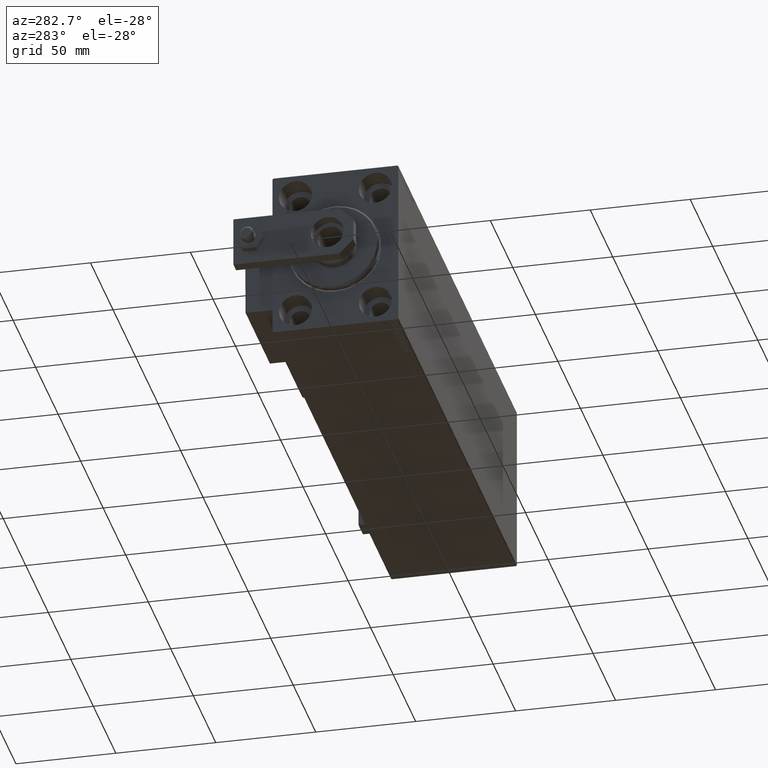
[diagram: clean part render]
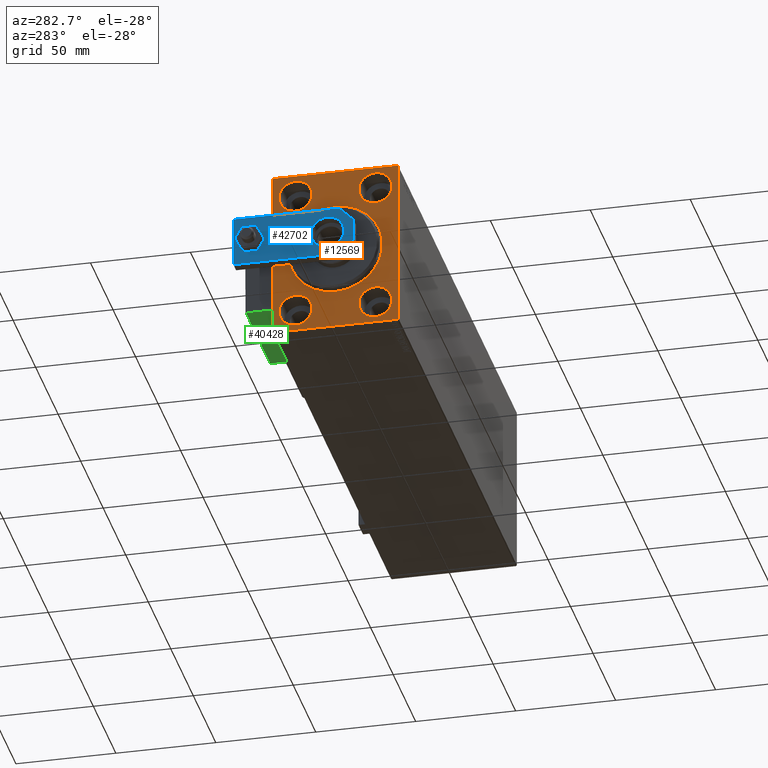
[diagram: same view with three faces highlighted in distinct colors, each labeled with its STEP entity id]
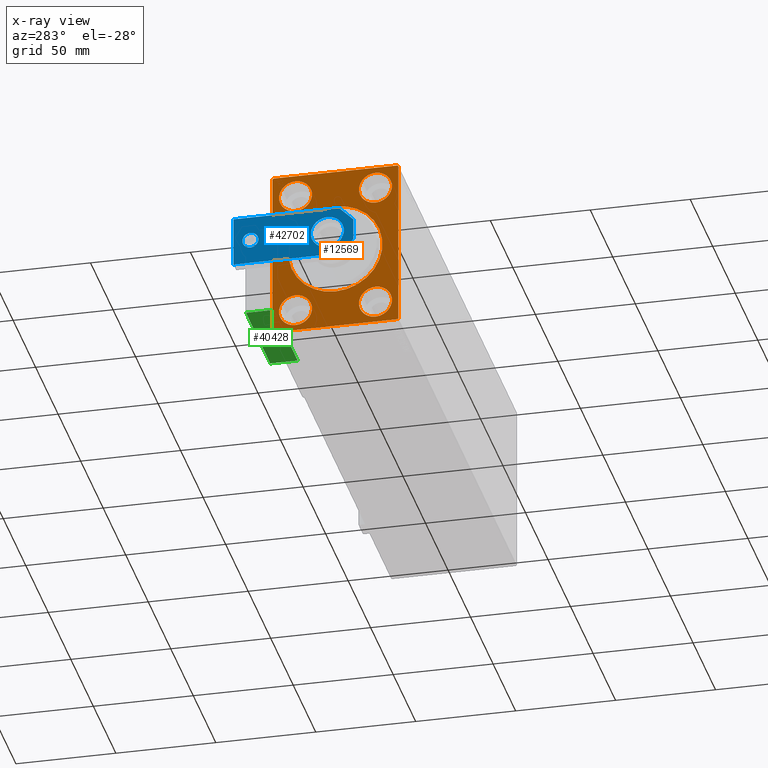
[diagram: x-ray of the same camera — body ghosted, the three highlighted faces saturated]
A machine part, auxiliary view with three faces highlighted in distinct colors.
The next image is the same camera in x-ray (body ghosted, the three faces saturated) — at least one of them is partly hidden behind the body in this view.
Their STEP definitions:

[orange] entity #12569 — the highlighted planar face has unit normal (1, 0, 0).
#187 = AXIS2_PLACEMENT_3D ( 'NONE', #39485, #4790, #4297 ) ;
#916 = DIRECTION ( 'NONE',  ( 0.000000000000000000, 0.000000000000000000, 1.000000000000000000 ) ) ;
#1050 = EDGE_CURVE ( 'NONE', #39361, #35404, #19446, .T. ) ;
#1446 = EDGE_LOOP ( 'NONE', ( #12610, #12957 ) ) ;
#1687 = CARTESIAN_POINT ( 'NONE',  ( 0.000000000000000000, 0.000000000000000000, 0.000000000000000000 ) ) ;
#2005 = ORIENTED_EDGE ( 'NONE', *, *, #1050, .F. ) ;
#2496 = CARTESIAN_POINT ( 'NONE',  ( 0.000000000000000000, -20.00000000000000355, -31.49999999999999289 ) ) ;
#2658 = CIRCLE ( 'NONE', #32554, 8.250000000000000000 ) ;
#2949 = DIRECTION ( 'NONE',  ( 0.000000000000000000, 0.000000000000000000, -1.000000000000000000 ) ) ;
#3012 = FACE_BOUND ( 'NONE', #20142, .T. ) ;
#3029 = ORIENTED_EDGE ( 'NONE', *, *, #18853, .F. ) ;
#3517 = AXIS2_PLACEMENT_3D ( 'NONE', #15751, #31180, #8153 ) ;
#3810 = VECTOR ( 'NONE', #9767, 1000.000000000000114 ) ;
#4168 = AXIS2_PLACEMENT_3D ( 'NONE', #45117, #21805, #45866 ) ;
#4251 = ORIENTED_EDGE ( 'NONE', *, *, #36835, .T. ) ;
#4278 = CIRCLE ( 'NONE', #43102, 8.249999999999992895 ) ;
#4297 = DIRECTION ( 'NONE',  ( 0.000000000000000000, 0.000000000000000000, 1.000000000000000000 ) ) ;
#4420 = VERTEX_POINT ( 'NONE', #9953 ) ;
#4425 = VERTEX_POINT ( 'NONE', #17782 ) ;
#4790 = DIRECTION ( 'NONE',  ( -1.000000000000000000, 0.000000000000000000, 0.000000000000000000 ) ) ;
#5200 = EDGE_CURVE ( 'NONE', #7770, #35404, #46510, .T. ) ;
#5217 = EDGE_CURVE ( 'NONE', #8731, #11006, #43702, .T. ) ;
#5986 = CARTESIAN_POINT ( 'NONE',  ( 0.000000000000000000, -31.50000000000000000, 41.99999999999996447 ) ) ;
#6490 = DIRECTION ( 'NONE',  ( 0.000000000000000000, -0.7071067811865474617, -0.7071067811865474617 ) ) ;
#6833 = CARTESIAN_POINT ( 'NONE',  ( 0.000000000000000000, 0.000000000000000000, 0.000000000000000000 ) ) ;
#7028 = DIRECTION ( 'NONE',  ( 0.000000000000000000, 0.000000000000000000, 1.000000000000000000 ) ) ;
#7770 = VERTEX_POINT ( 'NONE', #17943 ) ;
#7908 = DIRECTION ( 'NONE',  ( 1.000000000000000000, 0.000000000000000000, 0.000000000000000000 ) ) ;
#8153 = DIRECTION ( 'NONE',  ( 0.000000000000000000, 0.000000000000000000, 1.000000000000000000 ) ) ;
#8184 = EDGE_CURVE ( 'NONE', #39334, #13232, #13652, .T. ) ;
#8185 = VECTOR ( 'NONE', #6490, 1000.000000000000114 ) ;
#8731 = VERTEX_POINT ( 'NONE', #21180 ) ;
#9278 = DIRECTION ( 'NONE',  ( -1.000000000000000000, 0.000000000000000000, 0.000000000000000000 ) ) ;
#9427 = CARTESIAN_POINT ( 'NONE',  ( 0.000000000000000000, -31.50000000000000000, -42.50000000000000711 ) ) ;
#9767 = DIRECTION ( 'NONE',  ( -0.000000000000000000, 0.7071067811865474617, 0.7071067811865474617 ) ) ;
#9794 = DIRECTION ( 'NONE',  ( 1.000000000000000000, 0.000000000000000000, 0.000000000000000000 ) ) ;
#9953 = CARTESIAN_POINT ( 'NONE',  ( 0.000000000000000000, 19.99999999999999645, -39.74999999999999289 ) ) ;
#9999 = CARTESIAN_POINT ( 'NONE',  ( 0.000000000000000000, 31.50000000000001421, -41.99999999999997868 ) ) ;
#10451 = DIRECTION ( 'NONE',  ( -1.000000000000000000, 0.000000000000000000, 0.000000000000000000 ) ) ;
#11006 = VERTEX_POINT ( 'NONE', #48396 ) ;
#11289 = DIRECTION ( 'NONE',  ( -0.000000000000000000, -0.7071067811865474617, 0.7071067811865474617 ) ) ;
#11293 = CARTESIAN_POINT ( 'NONE',  ( 0.000000000000000000, 31.50000000000000000, 42.50000000000000711 ) ) ;
#11768 = EDGE_CURVE ( 'NONE', #7770, #11006, #30280, .T. ) ;
#11825 = DIRECTION ( 'NONE',  ( -0.000000000000000000, 0.7071067811865671127, -0.7071067811865279218 ) ) ;
#11862 = EDGE_LOOP ( 'NONE', ( #34883, #49711 ) ) ;
#12355 = DIRECTION ( 'NONE',  ( 0.000000000000000000, 0.000000000000000000, 1.000000000000000000 ) ) ;
#12569 = ADVANCED_FACE ( 'NONE', ( #44306, #3012, #21998, #49349, #37480, #29096 ), #45057, .F. ) ;
#12610 = ORIENTED_EDGE ( 'NONE', *, *, #42317, .F. ) ;
#12648 = CARTESIAN_POINT ( 'NONE',  ( 0.000000000000000000, -20.00000000000000355, -39.74999999999999289 ) ) ;
#12729 = DIRECTION ( 'NONE',  ( 0.000000000000000000, 1.000000000000000000, 0.000000000000000000 ) ) ;
#12945 = VERTEX_POINT ( 'NONE', #31473 ) ;
#12957 = ORIENTED_EDGE ( 'NONE', *, *, #18537, .F. ) ;
#13232 = VERTEX_POINT ( 'NONE', #16477 ) ;
#13404 = DIRECTION ( 'NONE',  ( -1.000000000000000000, 0.000000000000000000, 0.000000000000000000 ) ) ;
#13652 = CIRCLE ( 'NONE', #34693, 23.50000000000004619 ) ;
#13768 = VERTEX_POINT ( 'NONE', #17285 ) ;
#13933 = ORIENTED_EDGE ( 'NONE', *, *, #31247, .F. ) ;
#14624 = DIRECTION ( 'NONE',  ( -1.000000000000000000, 0.000000000000000000, 0.000000000000000000 ) ) ;
#15106 = CARTESIAN_POINT ( 'NONE',  ( 0.000000000000000000, -31.50000000000000000, 42.49999999999999289 ) ) ;
#15404 = CIRCLE ( 'NONE', #38876, 23.50000000000004619 ) ;
#15412 = AXIS2_PLACEMENT_3D ( 'NONE', #6833, #44557, #49100 ) ;
#15518 = CIRCLE ( 'NONE', #4168, 8.249999999999992895 ) ;
#15751 = CARTESIAN_POINT ( 'NONE',  ( 0.000000000000000000, 20.00000000000000355, 31.50000000000000000 ) ) ;
#15957 = VECTOR ( 'NONE', #27797, 1000.000000000000000 ) ;
#16477 = CARTESIAN_POINT ( 'NONE',  ( 0.000000000000000000, 0.000000000000000000, 23.50000000000004619 ) ) ;
#17249 = CARTESIAN_POINT ( 'NONE',  ( 0.000000000000000000, 19.99999999999999645, -23.24999999999999289 ) ) ;
#17285 = CARTESIAN_POINT ( 'NONE',  ( 0.000000000000000000, -30.99999999999997158, -42.50000000000000711 ) ) ;
#17505 = LINE ( 'NONE', #9427, #17788 ) ;
#17782 = CARTESIAN_POINT ( 'NONE',  ( 0.000000000000000000, -20.00000000000000355, -23.24999999999999289 ) ) ;
#17788 = VECTOR ( 'NONE', #12729, 1000.000000000000000 ) ;
#17937 = VECTOR ( 'NONE', #2949, 1000.000000000000000 ) ;
#17943 = CARTESIAN_POINT ( 'NONE',  ( 0.000000000000000000, 30.99999999999991473, 42.50000000000000711 ) ) ;
#18523 = CARTESIAN_POINT ( 'NONE',  ( 0.000000000000000000, -19.99999999999999645, 39.74999999999999289 ) ) ;
#18537 = EDGE_CURVE ( 'NONE', #12945, #19269, #15518, .T. ) ;
#18815 = ORIENTED_EDGE ( 'NONE', *, *, #5217, .T. ) ;
#18853 = EDGE_CURVE ( 'NONE', #8731, #35232, #19388, .T. ) ;
#18873 = DIRECTION ( 'NONE',  ( 0.000000000000000000, -1.000000000000000000, -2.202823461557850341E-16 ) ) ;
#19269 = VERTEX_POINT ( 'NONE', #18523 ) ;
#19388 = LINE ( 'NONE', #15106, #17937 ) ;
#19446 = LINE ( 'NONE', #19946, #15957 ) ;
#19798 = EDGE_CURVE ( 'NONE', #4420, #20492, #24439, .T. ) ;
#19946 = CARTESIAN_POINT ( 'NONE',  ( 0.000000000000000000, 31.50000000000001421, -42.50000000000000711 ) ) ;
#20142 = EDGE_LOOP ( 'NONE', ( #40701, #37753 ) ) ;
#20253 = VECTOR ( 'NONE', #18873, 1000.000000000000000 ) ;
#20423 = AXIS2_PLACEMENT_3D ( 'NONE', #45401, #10451, #41838 ) ;
#20492 = VERTEX_POINT ( 'NONE', #17249 ) ;
#20717 = EDGE_CURVE ( 'NONE', #4425, #24742, #2658, .T. ) ;
#20906 = CARTESIAN_POINT ( 'NONE',  ( 0.000000000000000000, 20.00000000000000355, 31.50000000000000000 ) ) ;
#21180 = CARTESIAN_POINT ( 'NONE',  ( 0.000000000000000000, -31.50000000000000000, 41.99999999999996447 ) ) ;
#21803 = EDGE_CURVE ( 'NONE', #20492, #4420, #47956, .T. ) ;
#21805 = DIRECTION ( 'NONE',  ( -1.000000000000000000, 0.000000000000000000, 0.000000000000000000 ) ) ;
#21998 = FACE_BOUND ( 'NONE', #1446, .T. ) ;
#22955 = ORIENTED_EDGE ( 'NONE', *, *, #8184, .T. ) ;
#23232 = ORIENTED_EDGE ( 'NONE', *, *, #5200, .T. ) ;
#23630 = EDGE_CURVE ( 'NONE', #27783, #41116, #49605, .T. ) ;
#24439 = CIRCLE ( 'NONE', #187, 8.250000000000000000 ) ;
#24742 = VERTEX_POINT ( 'NONE', #12648 ) ;
#25024 = DIRECTION ( 'NONE',  ( 0.000000000000000000, 0.000000000000000000, 1.000000000000000000 ) ) ;
#27136 = CARTESIAN_POINT ( 'NONE',  ( 0.000000000000000000, 0.000000000000000000, 0.000000000000000000 ) ) ;
#27534 = DIRECTION ( 'NONE',  ( -1.000000000000000000, 0.000000000000000000, 0.000000000000000000 ) ) ;
#27783 = VERTEX_POINT ( 'NONE', #48774 ) ;
#27797 = DIRECTION ( 'NONE',  ( 0.000000000000000000, -1.632680918566406300E-16, 1.000000000000000000 ) ) ;
#28158 = CIRCLE ( 'NONE', #28996, 8.249999999999992895 ) ;
#28996 = AXIS2_PLACEMENT_3D ( 'NONE', #20906, #9278, #916 ) ;
#29096 = FACE_OUTER_BOUND ( 'NONE', #45300, .T. ) ;
#29315 = CIRCLE ( 'NONE', #20423, 8.250000000000000000 ) ;
#29469 = CARTESIAN_POINT ( 'NONE',  ( 0.000000000000000000, 30.99999999999998579, -42.50000000000000711 ) ) ;
#29774 = LINE ( 'NONE', #45496, #46067 ) ;
#30280 = LINE ( 'NONE', #11293, #20253 ) ;
#30392 = ORIENTED_EDGE ( 'NONE', *, *, #34338, .T. ) ;
#30785 = EDGE_LOOP ( 'NONE', ( #13933, #36488 ) ) ;
#31180 = DIRECTION ( 'NONE',  ( -1.000000000000000000, 0.000000000000000000, 0.000000000000000000 ) ) ;
#31247 = EDGE_CURVE ( 'NONE', #41116, #27783, #28158, .T. ) ;
#31473 = CARTESIAN_POINT ( 'NONE',  ( 0.000000000000000000, -19.99999999999999645, 23.25000000000000355 ) ) ;
#32554 = AXIS2_PLACEMENT_3D ( 'NONE', #2496, #13404, #25024 ) ;
#33582 = LINE ( 'NONE', #48771, #8185 ) ;
#33905 = ORIENTED_EDGE ( 'NONE', *, *, #37728, .T. ) ;
#34338 = EDGE_CURVE ( 'NONE', #13768, #35232, #29774, .T. ) ;
#34598 = CARTESIAN_POINT ( 'NONE',  ( 0.000000000000000000, -31.50000000000000000, -41.99999999999997868 ) ) ;
#34693 = AXIS2_PLACEMENT_3D ( 'NONE', #1687, #9794, #44232 ) ;
#34873 = EDGE_CURVE ( 'NONE', #13768, #45941, #17505, .T. ) ;
#34883 = ORIENTED_EDGE ( 'NONE', *, *, #20717, .F. ) ;
#35232 = VERTEX_POINT ( 'NONE', #34598 ) ;
#35404 = VERTEX_POINT ( 'NONE', #43942 ) ;
#35620 = CARTESIAN_POINT ( 'NONE',  ( 0.000000000000000000, 30.99999999999991473, 42.50000000000000711 ) ) ;
#36488 = ORIENTED_EDGE ( 'NONE', *, *, #23630, .F. ) ;
#36835 = EDGE_CURVE ( 'NONE', #13232, #39334, #15404, .T. ) ;
#37181 = ORIENTED_EDGE ( 'NONE', *, *, #34873, .F. ) ;
#37480 = FACE_BOUND ( 'NONE', #11862, .T. ) ;
#37728 = EDGE_CURVE ( 'NONE', #39361, #45941, #33582, .T. ) ;
#37753 = ORIENTED_EDGE ( 'NONE', *, *, #19798, .F. ) ;
#38876 = AXIS2_PLACEMENT_3D ( 'NONE', #27136, #7908, #39552 ) ;
#39334 = VERTEX_POINT ( 'NONE', #47734 ) ;
#39361 = VERTEX_POINT ( 'NONE', #9999 ) ;
#39485 = CARTESIAN_POINT ( 'NONE',  ( 0.000000000000000000, 19.99999999999999645, -31.49999999999999289 ) ) ;
#39552 = DIRECTION ( 'NONE',  ( 0.000000000000000000, 0.000000000000000000, -1.000000000000000000 ) ) ;
#39965 = CARTESIAN_POINT ( 'NONE',  ( 0.000000000000000000, 20.00000000000000355, 39.74999999999999289 ) ) ;
#40701 = ORIENTED_EDGE ( 'NONE', *, *, #21803, .F. ) ;
#41116 = VERTEX_POINT ( 'NONE', #39965 ) ;
#41486 = AXIS2_PLACEMENT_3D ( 'NONE', #46786, #27534, #12355 ) ;
#41615 = EDGE_CURVE ( 'NONE', #24742, #4425, #29315, .T. ) ;
#41838 = DIRECTION ( 'NONE',  ( 0.000000000000000000, 0.000000000000000000, 1.000000000000000000 ) ) ;
#42317 = EDGE_CURVE ( 'NONE', #19269, #12945, #4278, .T. ) ;
#43102 = AXIS2_PLACEMENT_3D ( 'NONE', #49052, #14624, #7028 ) ;
#43702 = LINE ( 'NONE', #5986, #3810 ) ;
#43942 = CARTESIAN_POINT ( 'NONE',  ( 0.000000000000000000, 31.50000000000000000, 41.99999999999995737 ) ) ;
#44232 = DIRECTION ( 'NONE',  ( 0.000000000000000000, 0.000000000000000000, -1.000000000000000000 ) ) ;
#44306 = FACE_BOUND ( 'NONE', #48146, .T. ) ;
#44557 = DIRECTION ( 'NONE',  ( 1.000000000000000000, 0.000000000000000000, 0.000000000000000000 ) ) ;
#45057 = PLANE ( 'NONE',  #15412 ) ;
#45117 = CARTESIAN_POINT ( 'NONE',  ( 0.000000000000000000, -19.99999999999999645, 31.50000000000000000 ) ) ;
#45300 = EDGE_LOOP ( 'NONE', ( #3029, #18815, #46839, #23232, #2005, #33905, #37181, #30392 ) ) ;
#45401 = CARTESIAN_POINT ( 'NONE',  ( 0.000000000000000000, -20.00000000000000355, -31.49999999999999289 ) ) ;
#45496 = CARTESIAN_POINT ( 'NONE',  ( 0.000000000000000000, -30.99999999999997158, -42.50000000000000711 ) ) ;
#45866 = DIRECTION ( 'NONE',  ( 0.000000000000000000, 0.000000000000000000, 1.000000000000000000 ) ) ;
#45941 = VERTEX_POINT ( 'NONE', #29469 ) ;
#46067 = VECTOR ( 'NONE', #11289, 1000.000000000000114 ) ;
#46510 = LINE ( 'NONE', #35620, #47486 ) ;
#46786 = CARTESIAN_POINT ( 'NONE',  ( 0.000000000000000000, 19.99999999999999645, -31.49999999999999289 ) ) ;
#46839 = ORIENTED_EDGE ( 'NONE', *, *, #11768, .F. ) ;
#47486 = VECTOR ( 'NONE', #11825, 1000.000000000000000 ) ;
#47734 = CARTESIAN_POINT ( 'NONE',  ( 0.000000000000000000, 2.877919977996285448E-15, -23.50000000000004619 ) ) ;
#47956 = CIRCLE ( 'NONE', #41486, 8.250000000000000000 ) ;
#48146 = EDGE_LOOP ( 'NONE', ( #4251, #22955 ) ) ;
#48396 = CARTESIAN_POINT ( 'NONE',  ( 0.000000000000000000, -30.99999999999997158, 42.49999999999999289 ) ) ;
#48771 = CARTESIAN_POINT ( 'NONE',  ( 0.000000000000000000, 31.50000000000001421, -41.99999999999997868 ) ) ;
#48774 = CARTESIAN_POINT ( 'NONE',  ( 0.000000000000000000, 20.00000000000000355, 23.25000000000000355 ) ) ;
#49052 = CARTESIAN_POINT ( 'NONE',  ( 0.000000000000000000, -19.99999999999999645, 31.50000000000000000 ) ) ;
#49100 = DIRECTION ( 'NONE',  ( 0.000000000000000000, 0.000000000000000000, -1.000000000000000000 ) ) ;
#49349 = FACE_BOUND ( 'NONE', #30785, .T. ) ;
#49605 = CIRCLE ( 'NONE', #3517, 8.249999999999992895 ) ;
#49711 = ORIENTED_EDGE ( 'NONE', *, *, #41615, .F. ) ;

[blue] entity #42702 — the highlighted planar face has unit normal (-1, 0, 0).
#224 = VECTOR ( 'NONE', #13534, 1000.000000000000000 ) ;
#459 = EDGE_CURVE ( 'NONE', #6878, #17392, #19504, .T. ) ;
#601 = DIRECTION ( 'NONE',  ( 1.000000000000000000, 0.000000000000000000, 0.000000000000000000 ) ) ;
#1049 = CARTESIAN_POINT ( 'NONE',  ( 5.499999999999976907, 4.814824860968089633E-32, 6.000000000000000000 ) ) ;
#1675 = DIRECTION ( 'NONE',  ( 0.7071067811865465735, -0.7071067811865485719, 0.000000000000000000 ) ) ;
#3005 = CARTESIAN_POINT ( 'NONE',  ( 2.749999999999980016, -2.749999999999988010, 6.000000000000000000 ) ) ;
#4999 = ORIENTED_EDGE ( 'NONE', *, *, #44970, .F. ) ;
#5226 = DIRECTION ( 'NONE',  ( 0.000000000000000000, 0.000000000000000000, 1.000000000000000000 ) ) ;
#6878 = VERTEX_POINT ( 'NONE', #29075 ) ;
#7609 = EDGE_CURVE ( 'NONE', #11945, #7819, #15274, .T. ) ;
#7819 = VERTEX_POINT ( 'NONE', #9603 ) ;
#8931 = DIRECTION ( 'NONE',  ( 1.000000000000000000, 0.000000000000000000, 0.000000000000000000 ) ) ;
#8952 = DIRECTION ( 'NONE',  ( 0.000000000000000000, 0.000000000000000000, 1.000000000000000000 ) ) ;
#9165 = AXIS2_PLACEMENT_3D ( 'NONE', #32242, #36064, #13507 ) ;
#9603 = CARTESIAN_POINT ( 'NONE',  ( -8.250000000000000000, 12.99999999999999822, 6.000000000000000000 ) ) ;
#9704 = FACE_OUTER_BOUND ( 'NONE', #38234, .T. ) ;
#10922 = ORIENTED_EDGE ( 'NONE', *, *, #459, .T. ) ;
#11665 = CARTESIAN_POINT ( 'NONE',  ( -9.629649721936179265E-32, 12.99999999999999822, 6.000000000000000000 ) ) ;
#11844 = EDGE_CURVE ( 'NONE', #17392, #12299, #24169, .T. ) ;
#11915 = ORIENTED_EDGE ( 'NONE', *, *, #37624, .T. ) ;
#11945 = VERTEX_POINT ( 'NONE', #12545 ) ;
#12299 = VERTEX_POINT ( 'NONE', #38344 ) ;
#12545 = CARTESIAN_POINT ( 'NONE',  ( 8.250000000000000000, 13.00000000000000000, 6.000000000000000000 ) ) ;
#12817 = CARTESIAN_POINT ( 'NONE',  ( -1.432611055310774642E-16, 51.50000000000000000, 6.000000000000000000 ) ) ;
#12998 = DIRECTION ( 'NONE',  ( 1.000000000000000000, 0.000000000000000000, 0.000000000000000000 ) ) ;
#13006 = PLANE ( 'NONE',  #9165 ) ;
#13170 = CIRCLE ( 'NONE', #46314, 4.000000000000000888 ) ;
#13507 = DIRECTION ( 'NONE',  ( 1.000000000000000000, 0.000000000000000000, 0.000000000000000000 ) ) ;
#13534 = DIRECTION ( 'NONE',  ( 0.000000000000000000, 1.000000000000000000, 0.000000000000000000 ) ) ;
#13743 = CARTESIAN_POINT ( 'NONE',  ( -1.432611055310774642E-16, 51.50000000000000000, 6.000000000000000000 ) ) ;
#14974 = CARTESIAN_POINT ( 'NONE',  ( 12.50000000000000355, 60.00000000000000000, 6.000000000000000000 ) ) ;
#15274 = CIRCLE ( 'NONE', #41948, 8.250000000000000000 ) ;
#15333 = VECTOR ( 'NONE', #8931, 1000.000000000000000 ) ;
#15335 = DIRECTION ( 'NONE',  ( -8.673617379884035472E-17, -1.000000000000000000, 0.000000000000000000 ) ) ;
#16610 = DIRECTION ( 'NONE',  ( 1.000000000000000000, 0.000000000000000000, 0.000000000000000000 ) ) ;
#17296 = FACE_BOUND ( 'NONE', #38391, .T. ) ;
#17392 = VERTEX_POINT ( 'NONE', #19752 ) ;
#17654 = EDGE_CURVE ( 'NONE', #26981, #25657, #38456, .T. ) ;
#19504 = LINE ( 'NONE', #14974, #38566 ) ;
#19752 = CARTESIAN_POINT ( 'NONE',  ( -12.49999999999999822, 60.00000000000000000, 6.000000000000000000 ) ) ;
#20306 = ORIENTED_EDGE ( 'NONE', *, *, #25625, .F. ) ;
#21303 = EDGE_CURVE ( 'NONE', #25657, #6878, #44418, .T. ) ;
#21404 = CARTESIAN_POINT ( 'NONE',  ( 12.50000000000000355, 7.000000000000006217, 6.000000000000000000 ) ) ;
#22785 = DIRECTION ( 'NONE',  ( 0.000000000000000000, 0.000000000000000000, 1.000000000000000000 ) ) ;
#22907 = ORIENTED_EDGE ( 'NONE', *, *, #23159, .F. ) ;
#23074 = CARTESIAN_POINT ( 'NONE',  ( -5.500000000000010658, 4.814824860968089633E-32, 6.000000000000000000 ) ) ;
#23159 = EDGE_CURVE ( 'NONE', #7819, #11945, #35093, .T. ) ;
#23341 = VERTEX_POINT ( 'NONE', #36067 ) ;
#24103 = LINE ( 'NONE', #47418, #15333 ) ;
#24169 = LINE ( 'NONE', #43186, #35635 ) ;
#25208 = VERTEX_POINT ( 'NONE', #23074 ) ;
#25625 = EDGE_CURVE ( 'NONE', #23341, #50004, #41628, .T. ) ;
#25657 = VERTEX_POINT ( 'NONE', #21404 ) ;
#26426 = ORIENTED_EDGE ( 'NONE', *, *, #34896, .T. ) ;
#26981 = VERTEX_POINT ( 'NONE', #1049 ) ;
#29075 = CARTESIAN_POINT ( 'NONE',  ( 12.50000000000000355, 60.00000000000000000, 6.000000000000000000 ) ) ;
#29211 = CARTESIAN_POINT ( 'NONE',  ( 12.50000000000000355, 4.814824860968089633E-32, 6.000000000000000000 ) ) ;
#30738 = CARTESIAN_POINT ( 'NONE',  ( -9.629649721936179265E-32, 12.99999999999999822, 6.000000000000000000 ) ) ;
#31484 = ORIENTED_EDGE ( 'NONE', *, *, #11844, .T. ) ;
#32242 = CARTESIAN_POINT ( 'NONE',  ( 0.000000000000000000, 0.000000000000000000, 6.000000000000000000 ) ) ;
#33457 = AXIS2_PLACEMENT_3D ( 'NONE', #30738, #35316, #601 ) ;
#33495 = ORIENTED_EDGE ( 'NONE', *, *, #7609, .F. ) ;
#34153 = ORIENTED_EDGE ( 'NONE', *, *, #17654, .T. ) ;
#34896 = EDGE_CURVE ( 'NONE', #25208, #26981, #24103, .T. ) ;
#35093 = CIRCLE ( 'NONE', #33457, 8.250000000000000000 ) ;
#35316 = DIRECTION ( 'NONE',  ( 0.000000000000000000, 0.000000000000000000, 1.000000000000000000 ) ) ;
#35635 = VECTOR ( 'NONE', #15335, 1000.000000000000000 ) ;
#36064 = DIRECTION ( 'NONE',  ( -0.000000000000000000, 0.000000000000000000, 1.000000000000000000 ) ) ;
#36067 = CARTESIAN_POINT ( 'NONE',  ( -4.000000000000000888, 51.50000000000000000, 6.000000000000000000 ) ) ;
#37624 = EDGE_CURVE ( 'NONE', #12299, #25208, #47773, .T. ) ;
#37760 = DIRECTION ( 'NONE',  ( 1.000000000000000000, 0.000000000000000000, 0.000000000000000000 ) ) ;
#37775 = DIRECTION ( 'NONE',  ( -1.000000000000000000, 0.000000000000000000, 0.000000000000000000 ) ) ;
#38234 = EDGE_LOOP ( 'NONE', ( #31484, #11915, #26426, #34153, #49964, #10922 ) ) ;
#38344 = CARTESIAN_POINT ( 'NONE',  ( -12.50000000000000355, 7.000000000000013323, 6.000000000000000000 ) ) ;
#38391 = EDGE_LOOP ( 'NONE', ( #20306, #4999 ) ) ;
#38456 = LINE ( 'NONE', #3005, #47806 ) ;
#38566 = VECTOR ( 'NONE', #37775, 1000.000000000000000 ) ;
#39993 = AXIS2_PLACEMENT_3D ( 'NONE', #12817, #5226, #16610 ) ;
#41628 = CIRCLE ( 'NONE', #39993, 4.000000000000000888 ) ;
#41752 = DIRECTION ( 'NONE',  ( 0.7071067811865486830, 0.7071067811865464625, -0.000000000000000000 ) ) ;
#41948 = AXIS2_PLACEMENT_3D ( 'NONE', #11665, #22785, #37760 ) ;
#42702 = ADVANCED_FACE ( 'NONE', ( #17296, #9704, #43898 ), #13006, .T. ) ;
#43186 = CARTESIAN_POINT ( 'NONE',  ( -12.49999999999999822, 60.00000000000000000, 6.000000000000000000 ) ) ;
#43228 = CARTESIAN_POINT ( 'NONE',  ( -2.750000000000013767, -2.750000000000005773, 6.000000000000000000 ) ) ;
#43898 = FACE_BOUND ( 'NONE', #45427, .T. ) ;
#44418 = LINE ( 'NONE', #29211, #224 ) ;
#44580 = VECTOR ( 'NONE', #1675, 1000.000000000000000 ) ;
#44970 = EDGE_CURVE ( 'NONE', #50004, #23341, #13170, .T. ) ;
#45427 = EDGE_LOOP ( 'NONE', ( #22907, #33495 ) ) ;
#46314 = AXIS2_PLACEMENT_3D ( 'NONE', #13743, #8952, #12998 ) ;
#47418 = CARTESIAN_POINT ( 'NONE',  ( -12.50000000000000355, 4.814824860968089633E-32, 6.000000000000000000 ) ) ;
#47773 = LINE ( 'NONE', #43228, #44580 ) ;
#47806 = VECTOR ( 'NONE', #41752, 999.9999999999998863 ) ;
#49819 = CARTESIAN_POINT ( 'NONE',  ( 4.000000000000000888, 51.50000000000000000, 6.000000000000000000 ) ) ;
#49964 = ORIENTED_EDGE ( 'NONE', *, *, #21303, .T. ) ;
#50004 = VERTEX_POINT ( 'NONE', #49819 ) ;

[green] entity #40428 — the highlighted planar face has unit normal (0, 0, 1).
#596 = VECTOR ( 'NONE', #26485, 1000.000000000000000 ) ;
#3407 = VERTEX_POINT ( 'NONE', #49234 ) ;
#4243 = EDGE_CURVE ( 'NONE', #3407, #33244, #6780, .T. ) ;
#5102 = CARTESIAN_POINT ( 'NONE',  ( 27.00000000000006395, 20.00000000000001776, 13.70000000000000107 ) ) ;
#6780 = LINE ( 'NONE', #37671, #596 ) ;
#9481 = CARTESIAN_POINT ( 'NONE',  ( -26.99999999999993605, 20.00000000000002132, 0.000000000000000000 ) ) ;
#9691 = DIRECTION ( 'NONE',  ( -6.424901762877063495E-17, -1.000000000000000000, 0.000000000000000000 ) ) ;
#10049 = CARTESIAN_POINT ( 'NONE',  ( -26.99999999999993605, 20.00000000000002132, 13.70000000000000107 ) ) ;
#11703 = VERTEX_POINT ( 'NONE', #10049 ) ;
#16354 = AXIS2_PLACEMENT_3D ( 'NONE', #47683, #9691, #21071 ) ;
#16425 = VECTOR ( 'NONE', #45499, 1000.000000000000000 ) ;
#17842 = EDGE_LOOP ( 'NONE', ( #24241, #19207, #38873, #46794 ) ) ;
#19207 = ORIENTED_EDGE ( 'NONE', *, *, #44240, .T. ) ;
#21071 = DIRECTION ( 'NONE',  ( 1.000000000000000000, -6.424901762877063495E-17, 0.000000000000000000 ) ) ;
#21209 = VECTOR ( 'NONE', #28258, 1000.000000000000000 ) ;
#21524 = LINE ( 'NONE', #5102, #29310 ) ;
#22002 = EDGE_CURVE ( 'NONE', #11703, #33244, #42433, .T. ) ;
#24241 = ORIENTED_EDGE ( 'NONE', *, *, #22002, .F. ) ;
#26485 = DIRECTION ( 'NONE',  ( -1.000000000000000000, 6.424901762877062263E-17, 0.000000000000000000 ) ) ;
#28258 = DIRECTION ( 'NONE',  ( -0.000000000000000000, -0.000000000000000000, -1.000000000000000000 ) ) ;
#28679 = FACE_OUTER_BOUND ( 'NONE', #17842, .T. ) ;
#29310 = VECTOR ( 'NONE', #47390, 1000.000000000000000 ) ;
#33244 = VERTEX_POINT ( 'NONE', #9481 ) ;
#35633 = CARTESIAN_POINT ( 'NONE',  ( 27.00000000000006395, 20.00000000000001776, 14.00000000000000000 ) ) ;
#37671 = CARTESIAN_POINT ( 'NONE',  ( 27.00000000000006395, 20.00000000000001776, 0.000000000000000000 ) ) ;
#38873 = ORIENTED_EDGE ( 'NONE', *, *, #44585, .T. ) ;
#40417 = LINE ( 'NONE', #35633, #21209 ) ;
#40428 = ADVANCED_FACE ( 'NONE', ( #28679 ), #44890, .F. ) ;
#42433 = LINE ( 'NONE', #45239, #16425 ) ;
#44240 = EDGE_CURVE ( 'NONE', #11703, #49911, #21524, .T. ) ;
#44350 = CARTESIAN_POINT ( 'NONE',  ( 27.00000000000006395, 20.00000000000001776, 13.70000000000000107 ) ) ;
#44585 = EDGE_CURVE ( 'NONE', #49911, #3407, #40417, .T. ) ;
#44890 = PLANE ( 'NONE',  #16354 ) ;
#45239 = CARTESIAN_POINT ( 'NONE',  ( -26.99999999999993605, 20.00000000000002132, 14.00000000000000000 ) ) ;
#45499 = DIRECTION ( 'NONE',  ( -0.000000000000000000, -0.000000000000000000, -1.000000000000000000 ) ) ;
#46794 = ORIENTED_EDGE ( 'NONE', *, *, #4243, .T. ) ;
#47390 = DIRECTION ( 'NONE',  ( 1.000000000000000000, -6.424901762877063495E-17, -0.000000000000000000 ) ) ;
#47683 = CARTESIAN_POINT ( 'NONE',  ( 27.00000000000006395, 20.00000000000001776, 14.00000000000000000 ) ) ;
#49234 = CARTESIAN_POINT ( 'NONE',  ( 27.00000000000006395, 20.00000000000001776, 0.000000000000000000 ) ) ;
#49911 = VERTEX_POINT ( 'NONE', #44350 ) ;